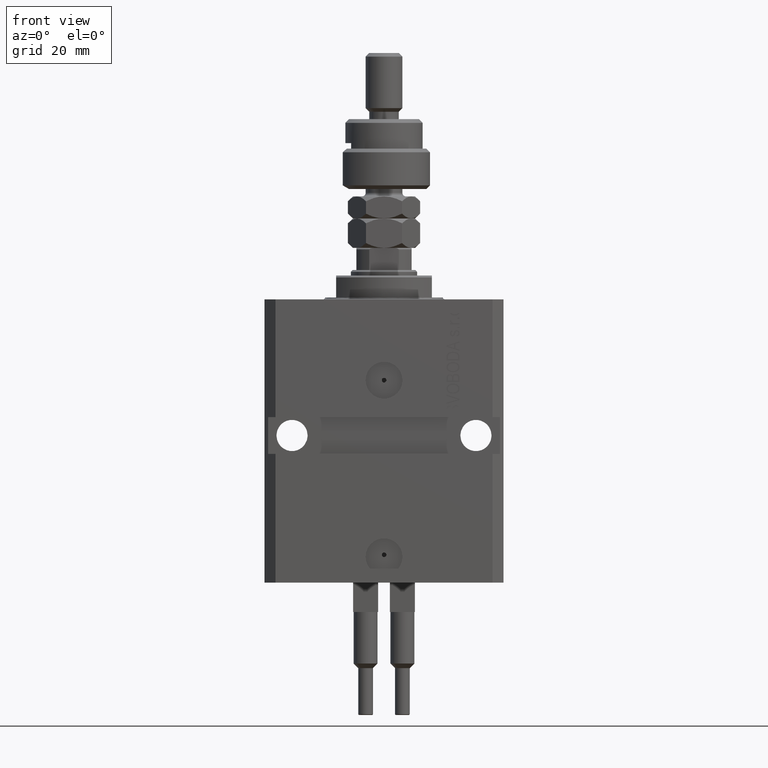
[diagram: clean part render]
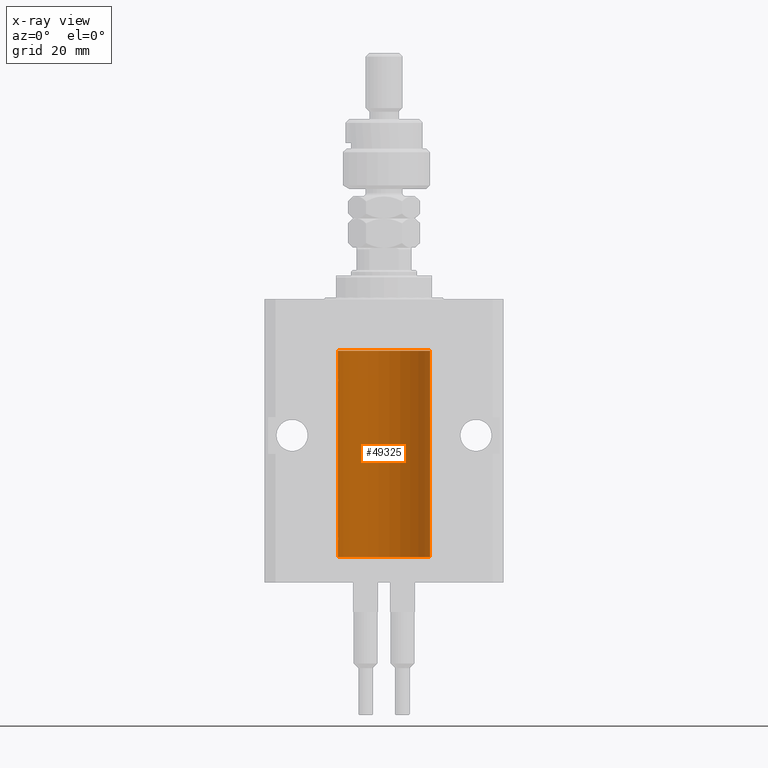
[diagram: x-ray — body ghosted, one internal face saturated and labeled with its STEP entity id]
A machine part, front view, then the same camera in x-ray: the body is ghosted and one INTERNAL B-rep face — a face not visible from any outside direction — is saturated and labeled: STEP entity #49325.
In plain terms, the highlighted cylindrical surface (partial cylindrical patch) has radius 12.5 mm, axis along (0, 0, 1).
Its self-contained STEP definition (entity closure, byte-faithful):
#58 = EDGE_LOOP ( 'NONE', ( #33779, #17675, #7249, #813, #37825, #34994, #11588, #24708 ) ) ;
#443 = EDGE_CURVE ( 'NONE', #1060, #16969, #20724, .T. ) ;
#813 = ORIENTED_EDGE ( 'NONE', *, *, #40519, .T. ) ;
#1060 = VERTEX_POINT ( 'NONE', #22327 ) ;
#1283 = CYLINDRICAL_SURFACE ( 'NONE', #9935, 12.50000000000000000 ) ;
#1411 = EDGE_CURVE ( 'NONE', #22661, #5066, #15330, .T. ) ;
#2898 = DIRECTION ( 'NONE',  ( 1.000000000000000000, 0.000000000000000000, 0.000000000000000000 ) ) ;
#3379 = CARTESIAN_POINT ( 'NONE',  ( -12.50000000000000000, -1.053276923642966949E-14, -64.37500000000000000 ) ) ;
#4269 = EDGE_CURVE ( 'NONE', #1060, #38745, #15204, .T. ) ;
#4941 = CARTESIAN_POINT ( 'NONE',  ( -12.49915784441386890, 0.1636601911727947889, -21.39126818989430490 ) ) ;
#5066 = VERTEX_POINT ( 'NONE', #15218 ) ;
#5439 = CARTESIAN_POINT ( 'NONE',  ( -12.48809959379011403, 0.5462151254764975317, -22.31461370481611795 ) ) ;
#5742 = DIRECTION ( 'NONE',  ( -0.000000000000000000, -0.000000000000000000, 1.000000000000000000 ) ) ;
#7249 = ORIENTED_EDGE ( 'NONE', *, *, #25848, .T. ) ;
#8804 = CARTESIAN_POINT ( 'NONE',  ( -12.50000000000017941, 3.883381646606358354E-13, -22.62500000000358824 ) ) ;
#9935 = AXIS2_PLACEMENT_3D ( 'NONE', #25461, #48549, #43950 ) ;
#10553 = CARTESIAN_POINT ( 'NONE',  ( -12.50000000000000000, 1.530808498934191521E-15, -13.99999999999999822 ) ) ;
#11588 = ORIENTED_EDGE ( 'NONE', *, *, #13714, .F. ) ;
#12651 = CARTESIAN_POINT ( 'NONE',  ( -12.50000000000000000, -2.089494013101375120E-17, -21.37499999999999645 ) ) ;
#13036 = DIRECTION ( 'NONE',  ( -0.000000000000000000, -0.000000000000000000, 1.000000000000000000 ) ) ;
#13714 = EDGE_CURVE ( 'NONE', #22661, #38745, #32576, .T. ) ;
#14695 = DIRECTION ( 'NONE',  ( 0.000000000000000000, 0.000000000000000000, 1.000000000000000000 ) ) ;
#15204 = B_SPLINE_CURVE_WITH_KNOTS ( 'NONE', 3,
 ( #12651, #29125, #4941, #21672, #37331, #36816, #28864, #25254, #16527, #5439, #47846, #21151, #28356, #8804 ),
 .UNSPECIFIED., .F., .F.,
 ( 4, 2, 2, 2, 2, 2, 4 ),
 ( 2.030551168097110502E-20, 0.0002442924852390969078, 0.0004885849704781938157, 0.0009771699409563880650, 0.001221462426195485135, 0.001465754911434582423, 0.001954339881912776130 ),
 .UNSPECIFIED. ) ;
#15218 = CARTESIAN_POINT ( 'NONE',  ( -12.50000000000017941, 3.883381774819353300E-13, -65.62500000000359535 ) ) ;
#15281 = CARTESIAN_POINT ( 'NONE',  ( -12.48520330846398174, 0.6088355886774118320, -65.16325431852561678 ) ) ;
#15330 = B_SPLINE_CURVE_WITH_KNOTS ( 'NONE', 3,
 ( #42259, #15781, #42009, #22520, #18665, #34318, #30471, #46105, #15281, #34824, #30965, #44275, #28129, #48118 ),
 .UNSPECIFIED., .F., .F.,
 ( 4, 2, 2, 2, 2, 2, 4 ),
 ( 3.492495172846855184E-18, 0.0002442924852390798859, 0.0004885849704781563023, 0.0009771699409563386254, 0.001221462426195450658, 0.001465754911434562473, 0.001954339881912786538 ),
 .UNSPECIFIED. ) ;
#15724 = DIRECTION ( 'NONE',  ( 0.000000000000000000, 0.000000000000000000, 1.000000000000000000 ) ) ;
#15781 = CARTESIAN_POINT ( 'NONE',  ( -12.49999999999999645, 0.08260426088728485550, -64.37499999999998579 ) ) ;
#16527 = CARTESIAN_POINT ( 'NONE',  ( -12.48520330846397819, 0.6088355886774127201, -22.16325431852561323 ) ) ;
#16969 = VERTEX_POINT ( 'NONE', #10553 ) ;
#17232 = VERTEX_POINT ( 'NONE', #49013 ) ;
#17334 = CARTESIAN_POINT ( 'NONE',  ( -12.50000000000000000, 1.530808498934191521E-15, -70.09999999999999432 ) ) ;
#17457 = DIRECTION ( 'NONE',  ( -0.000000000000000000, -0.000000000000000000, 1.000000000000000000 ) ) ;
#17675 = ORIENTED_EDGE ( 'NONE', *, *, #47077, .F. ) ;
#18665 = CARTESIAN_POINT ( 'NONE',  ( -12.49422197749724361, 0.3843754434364307082, -64.50047099568097053 ) ) ;
#19083 = DIRECTION ( 'NONE',  ( 1.000000000000000000, 0.000000000000000000, 0.000000000000000000 ) ) ;
#19757 = CIRCLE ( 'NONE', #27111, 12.50000000000000000 ) ;
#20473 = DIRECTION ( 'NONE',  ( -0.000000000000000000, -0.000000000000000000, 1.000000000000000000 ) ) ;
#20724 = LINE ( 'NONE', #39723, #33903 ) ;
#20785 = CARTESIAN_POINT ( 'NONE',  ( -12.50000000000000000, 1.530808498934191521E-15, -70.09999999999999432 ) ) ;
#21151 = CARTESIAN_POINT ( 'NONE',  ( -12.49631005746706336, 0.3253680783018528255, -22.55856740465392463 ) ) ;
#21672 = CARTESIAN_POINT ( 'NONE',  ( -12.49625855304193678, 0.3150454781038042329, -21.45402800297484802 ) ) ;
#22327 = CARTESIAN_POINT ( 'NONE',  ( -12.50000000000000000, -2.089494013101375120E-17, -21.37499999999999645 ) ) ;
#22520 = CARTESIAN_POINT ( 'NONE',  ( -12.49625855304193500, 0.3150454781038046770, -64.45402800297485157 ) ) ;
#22661 = VERTEX_POINT ( 'NONE', #3379 ) ;
#23175 = CARTESIAN_POINT ( 'NONE',  ( 0.000000000000000000, 0.000000000000000000, -70.09999999999999432 ) ) ;
#24624 = VECTOR ( 'NONE', #13036, 1000.000000000000000 ) ;
#24708 = ORIENTED_EDGE ( 'NONE', *, *, #1411, .T. ) ;
#25022 = CARTESIAN_POINT ( 'NONE',  ( 12.50000000000000000, 0.000000000000000000, -70.09999999999999432 ) ) ;
#25254 = CARTESIAN_POINT ( 'NONE',  ( -12.48436376893640443, 0.6250290278979917513, -22.08132082824473486 ) ) ;
#25461 = CARTESIAN_POINT ( 'NONE',  ( 0.000000000000000000, 0.000000000000000000, -70.09999999999999432 ) ) ;
#25848 = EDGE_CURVE ( 'NONE', #40389, #17232, #36470, .T. ) ;
#27111 = AXIS2_PLACEMENT_3D ( 'NONE', #23175, #14695, #19083 ) ;
#28129 = CARTESIAN_POINT ( 'NONE',  ( -12.49999999999999822, 0.1631761135151225950, -65.62499999999985789 ) ) ;
#28218 = VECTOR ( 'NONE', #17457, 1000.000000000000000 ) ;
#28356 = CARTESIAN_POINT ( 'NONE',  ( -12.49999999999999289, 0.1631761135151241215, -22.62499999999984013 ) ) ;
#28554 = FACE_OUTER_BOUND ( 'NONE', #58, .T. ) ;
#28618 = AXIS2_PLACEMENT_3D ( 'NONE', #42444, #15724, #2898 ) ;
#28864 = CARTESIAN_POINT ( 'NONE',  ( -12.48436813453758454, 0.6249418250771192618, -21.83668996798922635 ) ) ;
#29125 = CARTESIAN_POINT ( 'NONE',  ( -12.50000000000000000, 0.08260426088729219685, -21.37500000000000000 ) ) ;
#30471 = CARTESIAN_POINT ( 'NONE',  ( -12.48436813453758809, 0.6249418250771181516, -64.83668996798922990 ) ) ;
#30965 = CARTESIAN_POINT ( 'NONE',  ( -12.49011732893843885, 0.5003763274120245352, -65.38348111289289477 ) ) ;
#32407 = EDGE_CURVE ( 'NONE', #33679, #5066, #49150, .T. ) ;
#32576 = LINE ( 'NONE', #20785, #24624 ) ;
#33679 = VERTEX_POINT ( 'NONE', #49984 ) ;
#33779 = ORIENTED_EDGE ( 'NONE', *, *, #32407, .F. ) ;
#33903 = VECTOR ( 'NONE', #20473, 1000.000000000000000 ) ;
#34318 = CARTESIAN_POINT ( 'NONE',  ( -12.48810268015257741, 0.5573155909661293705, -64.67347410093867666 ) ) ;
#34824 = CARTESIAN_POINT ( 'NONE',  ( -12.48809959379011580, 0.5462151254764966435, -65.31461370481613926 ) ) ;
#34994 = ORIENTED_EDGE ( 'NONE', *, *, #4269, .T. ) ;
#35786 = VECTOR ( 'NONE', #5742, 1000.000000000000000 ) ;
#36470 = LINE ( 'NONE', #48509, #28218 ) ;
#36816 = CARTESIAN_POINT ( 'NONE',  ( -12.48810268015257563, 0.5573155909661349217, -21.67347410093867666 ) ) ;
#37331 = CARTESIAN_POINT ( 'NONE',  ( -12.49422197749724006, 0.3843754434364375916, -21.50047099568095277 ) ) ;
#37825 = ORIENTED_EDGE ( 'NONE', *, *, #443, .F. ) ;
#38745 = VERTEX_POINT ( 'NONE', #45779 ) ;
#39723 = CARTESIAN_POINT ( 'NONE',  ( -12.50000000000000000, 1.530808498934191521E-15, -70.09999999999999432 ) ) ;
#40389 = VERTEX_POINT ( 'NONE', #25022 ) ;
#40519 = EDGE_CURVE ( 'NONE', #17232, #16969, #50728, .T. ) ;
#42009 = CARTESIAN_POINT ( 'NONE',  ( -12.49915784441386890, 0.1636601911727943726, -64.39126818989430490 ) ) ;
#42259 = CARTESIAN_POINT ( 'NONE',  ( -12.50000000000000000, -1.053276923642966949E-14, -64.37500000000000000 ) ) ;
#42444 = CARTESIAN_POINT ( 'NONE',  ( 0.000000000000000000, 0.000000000000000000, -13.99999999999999822 ) ) ;
#43950 = DIRECTION ( 'NONE',  ( 1.000000000000000000, 0.000000000000000000, 0.000000000000000000 ) ) ;
#44275 = CARTESIAN_POINT ( 'NONE',  ( -12.49631005746706514, 0.3253680783018499389, -65.55856740465391397 ) ) ;
#45779 = CARTESIAN_POINT ( 'NONE',  ( -12.50000000000017941, 3.883381646606358354E-13, -22.62500000000358824 ) ) ;
#46105 = CARTESIAN_POINT ( 'NONE',  ( -12.48436376893640265, 0.6250290278979918623, -65.08132082824472775 ) ) ;
#47077 = EDGE_CURVE ( 'NONE', #40389, #33679, #19757, .T. ) ;
#47846 = CARTESIAN_POINT ( 'NONE',  ( -12.49011732893843529, 0.5003763274120274218, -22.38348111289287701 ) ) ;
#48118 = CARTESIAN_POINT ( 'NONE',  ( -12.50000000000017941, 3.883381774819353300E-13, -65.62500000000359535 ) ) ;
#48509 = CARTESIAN_POINT ( 'NONE',  ( 12.50000000000000000, 0.000000000000000000, -70.09999999999999432 ) ) ;
#48549 = DIRECTION ( 'NONE',  ( -0.000000000000000000, -0.000000000000000000, 1.000000000000000000 ) ) ;
#49013 = CARTESIAN_POINT ( 'NONE',  ( 12.50000000000000000, 0.000000000000000000, -13.99999999999999822 ) ) ;
#49150 = LINE ( 'NONE', #17334, #35786 ) ;
#49325 = ADVANCED_FACE ( 'NONE', ( #28554 ), #1283, .F. ) ;
#49984 = CARTESIAN_POINT ( 'NONE',  ( -12.50000000000000000, 1.530808498934191521E-15, -70.09999999999999432 ) ) ;
#50728 = CIRCLE ( 'NONE', #28618, 12.50000000000000000 ) ;